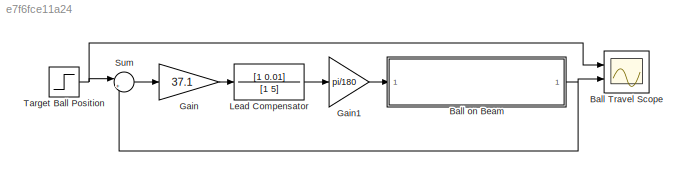
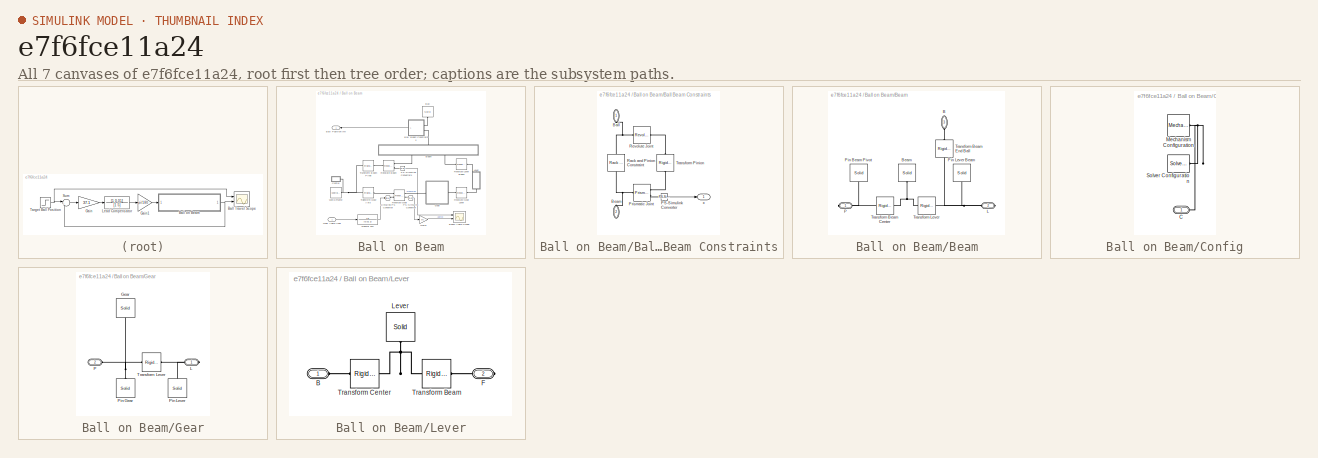
[diagram: thumbnail index - all 7 canvases of the model, root first then tree order]
MODEL slx_e7f6fce11a24
KIND model
CONFIG AbsTol = auto
CONFIG EnableMultiTasking = on
CONFIG FixedStep = auto
CONFIG MaxStep = auto
CONFIG MinStep = auto
CONFIG PostLoadFcn = m = 0.11;\nR = 0.015;\ng = -9.8;\nL = 1.0;\nd = 0.03;\nJ = 9.99e-6;
CONFIG RelTol = 1e-3
CONFIG SampleTimeConstraint = Unconstrained
CONFIG Solver = ode23t
CONFIG SolverName = ode23t
CONFIG StartTime = 0.0
CONFIG StopTime = 1000
BLOCK [Scope] Ball Travel Scope
  Floating = off
  NumInputPorts = 2
  Ports = [2]
  ScopeSpecificationString = Simulink.scopes.TimeScopeBlockCfg('CurrentConfiguration', extmgr.ConfigurationSet(extmgr.Configuration('Core','General UI',true),extmgr.Configuration('Core','Source UI',true),extmgr.Configuration('Sources','WiredSimulink',true,'DataLoggingSaveFormat','StructureWithTime','DataLoggingDecimation','1','DataLoggingDecimateData',true),extmgr.Configuration('Visuals','Time Domain',true,'SerializedDisplays...<+1706ch>
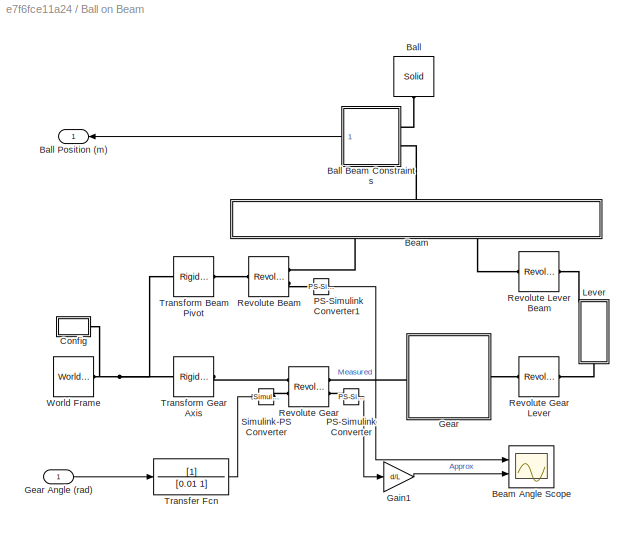
BLOCK [SubSystem] Ball on Beam
  Ports = [1, 1]
  RequestExecContextInheritance = off
BLOCK [Reference] Ball on Beam/Ball  REF=sm_lib/Body Elements/Solid
  Ports = [0, 0, 0, 0, 0, 0, 1]
  SourceBlock = sm_lib/Body Elements/Solid
  SourceProductBaseCode = MS
  SourceProductName = Simscape Multibody
  SourceType = Solid
BLOCK [SubSystem] Ball on Beam/Ball Beam Constraints
  Ports = [0, 1, 0, 0, 0, 2]
  RequestExecContextInheritance = off
BLOCK [PMIOPort] Ball on Beam/Ball Beam Constraints/Ball
  Side = Left
BLOCK [PMIOPort] Ball on Beam/Ball Beam Constraints/Beam
  Port = 2
  Side = Left
BLOCK [Reference] Ball on Beam/Ball Beam Constraints/PS-Simulink Converter  REF=nesl_utility/PS-Simulink
Converter
  Ports = [0, 1, 0, 0, 0, 1]
  SourceBlock = nesl_utility/PS-Simulink\nConverter
  SourceProductBaseCode = SS
  SourceProductName = Simscape
  SourceType = PS-Simulink\nConverter
BLOCK [Reference] Ball on Beam/Ball Beam Constraints/Prismatic Joint  REF=sm_lib/Joints/Prismatic
Joint
  Ports = [0, 0, 0, 0, 0, 1, 2]
  SourceBlock = sm_lib/Joints/Prismatic\nJoint
  SourceProductBaseCode = MS
  SourceProductName = Simscape Multibody
  SourceType = Prismatic\nJoint
BLOCK [Reference] Ball on Beam/Ball Beam Constraints/Rack and Pinion Constraint  REF=sm_lib/Gears and
Couplings/Gears/Rack and Pinion
Constraint
  Ports = [0, 0, 0, 0, 0, 1, 1]
  SourceBlock = sm_lib/Gears and\nCouplings/Gears/Rack and Pinion\nConstraint
  SourceProductBaseCode = MS
  SourceProductName = Simscape Multibody
  SourceType = Rack and Pinion\nConstraint
BLOCK [Reference] Ball on Beam/Ball Beam Constraints/Revolute Joint  REF=sm_lib/Joints/Revolute Joint
  Ports = [0, 0, 0, 0, 0, 1, 1]
  SourceBlock = sm_lib/Joints/Revolute Joint
  SourceProductBaseCode = MS
  SourceProductName = Simscape Multibody
  SourceType = Revolute Joint
BLOCK [Reference] Ball on Beam/Ball Beam Constraints/Transform Pinion  REF=sm_lib/Frames and
Transforms/Rigid
Transform
  Ports = [0, 0, 0, 0, 0, 1, 1]
  SourceBlock = sm_lib/Frames and\nTransforms/Rigid\nTransform
  SourceProductBaseCode = MS
  SourceProductName = Simscape Multibody
  SourceType = Rigid\nTransform
BLOCK [Outport] Ball on Beam/Ball Beam Constraints/x
  IconDisplay = Port number
BLOCK [Outport] Ball on Beam/Ball Position (m)
  IconDisplay = Port number
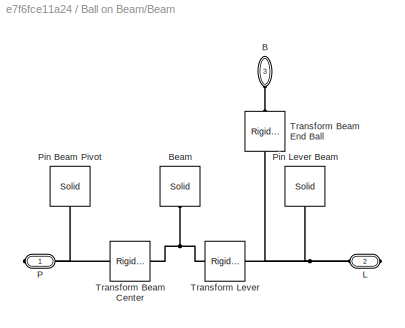
BLOCK [SubSystem] Ball on Beam/Beam
  Ports = [0, 0, 0, 0, 0, 1, 2]
  RequestExecContextInheritance = off
BLOCK [Scope] Ball on Beam/Beam Angle Scope
  Floating = off
  NumInputPorts = 2
  Ports = [2]
  ScopeSpecificationString = Simulink.scopes.TimeScopeBlockCfg('CurrentConfiguration', extmgr.ConfigurationSet(extmgr.Configuration('Core','General UI',true),extmgr.Configuration('Core','Source UI',true),extmgr.Configuration('Sources','WiredSimulink',true,'DataLoggingSaveFormat','StructureWithTime','DataLoggingDecimation','1','DataLoggingDecimateData',true,'DataLoggingVariableName','ScopeData1'),extmgr.Configuration('Visuals'...<+1725ch>
BLOCK [PMIOPort] Ball on Beam/Beam/B
  Port = 3
  Side = Left
BLOCK [Reference] Ball on Beam/Beam/Beam  REF=sm_lib/Body Elements/Solid
  Ports = [0, 0, 0, 0, 0, 0, 1]
  SourceBlock = sm_lib/Body Elements/Solid
  SourceProductBaseCode = MS
  SourceProductName = Simscape Multibody
  SourceType = Solid
BLOCK [PMIOPort] Ball on Beam/Beam/L
  Port = 2
  Side = Right
BLOCK [PMIOPort] Ball on Beam/Beam/P
  Side = Right
BLOCK [Reference] Ball on Beam/Beam/Pin Beam Pivot  REF=sm_lib/Body Elements/Solid
  Ports = [0, 0, 0, 0, 0, 0, 1]
  SourceBlock = sm_lib/Body Elements/Solid
  SourceProductBaseCode = MS
  SourceProductName = Simscape Multibody
  SourceType = Solid
BLOCK [Reference] Ball on Beam/Beam/Pin Lever Beam  REF=sm_lib/Body Elements/Solid
  Ports = [0, 0, 0, 0, 0, 0, 1]
  SourceBlock = sm_lib/Body Elements/Solid
  SourceProductBaseCode = MS
  SourceProductName = Simscape Multibody
  SourceType = Solid
BLOCK [Reference] Ball on Beam/Beam/Transform Beam Center  REF=sm_lib/Frames and
Transforms/Rigid
Transform
  Ports = [0, 0, 0, 0, 0, 1, 1]
  SourceBlock = sm_lib/Frames and\nTransforms/Rigid\nTransform
  SourceProductBaseCode = MS
  SourceProductName = Simscape Multibody
  SourceType = Rigid\nTransform
BLOCK [Reference] Ball on Beam/Beam/Transform Beam End Ball  REF=sm_lib/Frames and
Transforms/Rigid
Transform
  Ports = [0, 0, 0, 0, 0, 1, 1]
  SourceBlock = sm_lib/Frames and\nTransforms/Rigid\nTransform
  SourceProductBaseCode = MS
  SourceProductName = Simscape Multibody
  SourceType = Rigid\nTransform
BLOCK [Reference] Ball on Beam/Beam/Transform Lever  REF=sm_lib/Frames and
Transforms/Rigid
Transform
  Ports = [0, 0, 0, 0, 0, 1, 1]
  SourceBlock = sm_lib/Frames and\nTransforms/Rigid\nTransform
  SourceProductBaseCode = MS
  SourceProductName = Simscape Multibody
  SourceType = Rigid\nTransform
BLOCK [SubSystem] Ball on Beam/Config
  Ports = [0, 0, 0, 0, 0, 1]
  RequestExecContextInheritance = off
BLOCK [PMIOPort] Ball on Beam/Config/C
  Side = Left
BLOCK [Reference] Ball on Beam/Config/Mechanism Configuration  REF=sm_lib/Utilities/Mechanism
Configuration
  Ports = [0, 0, 0, 0, 0, 0, 1]
  SourceBlock = sm_lib/Utilities/Mechanism\nConfiguration
  SourceProductBaseCode = MS
  SourceProductName = Simscape Multibody
  SourceType = Mechanism\nConfiguration
BLOCK [Reference] Ball on Beam/Config/Solver Configuration  REF=nesl_utility/Solver
Configuration
  Ports = [0, 0, 0, 0, 0, 0, 1]
  SourceBlock = nesl_utility/Solver\nConfiguration
  SourceProductBaseCode = SS
  SourceProductName = Simscape
  SourceType = Solver\nConfiguration
BLOCK [Gain] Ball on Beam/Gain1
  Gain = d/L
  OutDataTypeStr = Inherit: Inherit via internal rule
  ParamDataTypeStr = Inherit: Inherit via internal rule
  SaturateOnIntegerOverflow = off
BLOCK [SubSystem] Ball on Beam/Gear
  Ports = [0, 0, 0, 0, 0, 1, 1]
  RequestExecContextInheritance = off
BLOCK [Inport] Ball on Beam/Gear Angle (rad)
  IconDisplay = Port number
BLOCK [Reference] Ball on Beam/Gear/Gear  REF=sm_lib/Body Elements/Solid
  Ports = [0, 0, 0, 0, 0, 0, 1]
  SourceBlock = sm_lib/Body Elements/Solid
  SourceProductBaseCode = MS
  SourceProductName = Simscape Multibody
  SourceType = Solid
BLOCK [PMIOPort] Ball on Beam/Gear/L
  Side = Right
BLOCK [PMIOPort] Ball on Beam/Gear/P
  Port = 2
  Side = Left
BLOCK [Reference] Ball on Beam/Gear/Pin Gear  REF=sm_lib/Body Elements/Solid
  Ports = [0, 0, 0, 0, 0, 0, 1]
  SourceBlock = sm_lib/Body Elements/Solid
  SourceProductBaseCode = MS
  SourceProductName = Simscape Multibody
  SourceType = Solid
BLOCK [Reference] Ball on Beam/Gear/Pin Lever  REF=sm_lib/Body Elements/Solid
  Ports = [0, 0, 0, 0, 0, 0, 1]
  SourceBlock = sm_lib/Body Elements/Solid
  SourceProductBaseCode = MS
  SourceProductName = Simscape Multibody
  SourceType = Solid
BLOCK [Reference] Ball on Beam/Gear/Transform Lever  REF=sm_lib/Frames and
Transforms/Rigid
Transform
  Ports = [0, 0, 0, 0, 0, 1, 1]
  SourceBlock = sm_lib/Frames and\nTransforms/Rigid\nTransform
  SourceProductBaseCode = MS
  SourceProductName = Simscape Multibody
  SourceType = Rigid\nTransform
BLOCK [SubSystem] Ball on Beam/Lever
  Ports = [0, 0, 0, 0, 0, 1, 1]
  RequestExecContextInheritance = off
BLOCK [PMIOPort] Ball on Beam/Lever/B
  Side = Left
BLOCK [PMIOPort] Ball on Beam/Lever/F
  Port = 2
  Side = Right
BLOCK [Reference] Ball on Beam/Lever/Lever  REF=sm_lib/Body Elements/Solid
  Ports = [0, 0, 0, 0, 0, 0, 1]
  SourceBlock = sm_lib/Body Elements/Solid
  SourceProductBaseCode = MS
  SourceProductName = Simscape Multibody
  SourceType = Solid
BLOCK [Reference] Ball on Beam/Lever/Transform Beam  REF=sm_lib/Frames and
Transforms/Rigid
Transform
  Ports = [0, 0, 0, 0, 0, 1, 1]
  SourceBlock = sm_lib/Frames and\nTransforms/Rigid\nTransform
  SourceProductBaseCode = MS
  SourceProductName = Simscape Multibody
  SourceType = Rigid\nTransform
BLOCK [Reference] Ball on Beam/Lever/Transform Center  REF=sm_lib/Frames and
Transforms/Rigid
Transform
  Ports = [0, 0, 0, 0, 0, 1, 1]
  SourceBlock = sm_lib/Frames and\nTransforms/Rigid\nTransform
  SourceProductBaseCode = MS
  SourceProductName = Simscape Multibody
  SourceType = Rigid\nTransform
BLOCK [Reference] Ball on Beam/PS-Simulink Converter  REF=nesl_utility/PS-Simulink
Converter
  Ports = [0, 1, 0, 0, 0, 1]
  SourceBlock = nesl_utility/PS-Simulink\nConverter
  SourceProductBaseCode = SS
  SourceProductName = Simscape
  SourceType = PS-Simulink\nConverter
BLOCK [Reference] Ball on Beam/PS-Simulink Converter1  REF=nesl_utility/PS-Simulink
Converter
  Ports = [0, 1, 0, 0, 0, 1]
  SourceBlock = nesl_utility/PS-Simulink\nConverter
  SourceProductBaseCode = SS
  SourceProductName = Simscape
  SourceType = PS-Simulink\nConverter
BLOCK [Reference] Ball on Beam/Revolute Beam  REF=sm_lib/Joints/Revolute Joint
  Ports = [0, 0, 0, 0, 0, 1, 2]
  SourceBlock = sm_lib/Joints/Revolute Joint
  SourceProductBaseCode = MS
  SourceProductName = Simscape Multibody
  SourceType = Revolute Joint
BLOCK [Reference] Ball on Beam/Revolute Gear  REF=sm_lib/Joints/Revolute Joint
  Ports = [0, 0, 0, 0, 0, 2, 2]
  SourceBlock = sm_lib/Joints/Revolute Joint
  SourceProductBaseCode = MS
  SourceProductName = Simscape Multibody
  SourceType = Revolute Joint
BLOCK [Reference] Ball on Beam/Revolute Gear Lever  REF=sm_lib/Joints/Revolute Joint
  Ports = [0, 0, 0, 0, 0, 1, 1]
  SourceBlock = sm_lib/Joints/Revolute Joint
  SourceProductBaseCode = MS
  SourceProductName = Simscape Multibody
  SourceType = Revolute Joint
BLOCK [Reference] Ball on Beam/Revolute Lever Beam  REF=sm_lib/Joints/Revolute Joint
  Ports = [0, 0, 0, 0, 0, 1, 1]
  SourceBlock = sm_lib/Joints/Revolute Joint
  SourceProductBaseCode = MS
  SourceProductName = Simscape Multibody
  SourceType = Revolute Joint
BLOCK [Reference] Ball on Beam/Simulink-PS Converter  REF=nesl_utility/Simulink-PS
Converter
  Ports = [1, 0, 0, 0, 0, 0, 1]
  SourceBlock = nesl_utility/Simulink-PS\nConverter
  SourceProductBaseCode = SS
  SourceProductName = Simscape
  SourceType = Simulink-PS\nConverter
BLOCK [TransferFcn] Ball on Beam/Transfer Fcn
  Denominator = [0.01 1]
BLOCK [Reference] Ball on Beam/Transform Beam Pivot  REF=sm_lib/Frames and
Transforms/Rigid
Transform
  Ports = [0, 0, 0, 0, 0, 1, 1]
  SourceBlock = sm_lib/Frames and\nTransforms/Rigid\nTransform
  SourceProductBaseCode = MS
  SourceProductName = Simscape Multibody
  SourceType = Rigid\nTransform
BLOCK [Reference] Ball on Beam/Transform Gear Axis  REF=sm_lib/Frames and
Transforms/Rigid
Transform
  Ports = [0, 0, 0, 0, 0, 1, 1]
  SourceBlock = sm_lib/Frames and\nTransforms/Rigid\nTransform
  SourceProductBaseCode = MS
  SourceProductName = Simscape Multibody
  SourceType = Rigid\nTransform
BLOCK [Reference] Ball on Beam/World Frame  REF=sm_lib/Frames and
Transforms/World Frame
  Ports = [0, 0, 0, 0, 0, 0, 1]
  SourceBlock = sm_lib/Frames and\nTransforms/World Frame
  SourceProductBaseCode = MS
  SourceProductName = Simscape Multibody
  SourceType = World Frame
BLOCK [Gain] Gain
  Gain = 37.1
  OutDataTypeStr = Inherit: Inherit via internal rule
  ParamDataTypeStr = Inherit: Inherit via internal rule
  SaturateOnIntegerOverflow = off
BLOCK [Gain] Gain1
  Gain = pi/180
  OutDataTypeStr = Inherit: Inherit via internal rule
  ParamDataTypeStr = Inherit: Inherit via internal rule
  SaturateOnIntegerOverflow = off
BLOCK [TransferFcn] Lead Compensator
  Denominator = [1 5]
  Numerator = [1 0.01]
BLOCK [Sum] Sum
  IconShape = round
  InputSameDT = off
  Inputs = |+-
  OutDataTypeStr = Inherit: Inherit via internal rule
  Ports = [2, 1]
  SaturateOnIntegerOverflow = off
BLOCK [Step] Target Ball Position
  After = 0.3
  SampleTime = 0
  Time = 0
LINE Ball on Beam/Ball Beam Constraints/PS-Simulink Converter:1 -> Ball on Beam/Ball Beam Constraints/x:1
LINE Ball on Beam/Ball Beam Constraints:1 -> Ball on Beam/Ball Position (m):1
LINE Ball on Beam/Gain1:1 -> Ball on Beam/Beam Angle Scope:2
LINE Ball on Beam/Gear Angle (rad):1 -> Ball on Beam/Transfer Fcn:1
LINE Ball on Beam/PS-Simulink Converter1:1 -> Ball on Beam/Beam Angle Scope:1
LINE Ball on Beam/PS-Simulink Converter:1 -> Ball on Beam/Gain1:1
LINE Ball on Beam/Transfer Fcn:1 -> Ball on Beam/Simulink-PS Converter:1
NET Ball on Beam:1 -> Ball Travel Scope:2, Sum:2
LINE Gain1:1 -> Ball on Beam:1
LINE Gain:1 -> Lead Compensator:1
LINE Lead Compensator:1 -> Gain1:1
LINE Sum:1 -> Gain:1
NET Target Ball Position:1 -> Ball Travel Scope:1, Sum:1
PNET net1: Ball on Beam/Ball Beam Constraints/Ball:RConn1 -- Ball on Beam/Ball Beam Constraints/Rack and Pinion Constraint:LConn1 -- Ball on Beam/Ball Beam Constraints/Revolute Joint:RConn1
PNET net2: Ball on Beam/Ball Beam Constraints/Beam:RConn1 -- Ball on Beam/Ball Beam Constraints/Prismatic Joint:LConn1 -- Ball on Beam/Ball Beam Constraints/Rack and Pinion Constraint:RConn1
PLINE Ball on Beam/Ball Beam Constraints/PS-Simulink Converter:LConn1 -- Ball on Beam/Ball Beam Constraints/Prismatic Joint:RConn2
PLINE Ball on Beam/Ball Beam Constraints/Prismatic Joint:RConn1 -- Ball on Beam/Ball Beam Constraints/Transform Pinion:LConn1
PLINE Ball on Beam/Ball Beam Constraints/Revolute Joint:LConn1 -- Ball on Beam/Ball Beam Constraints/Transform Pinion:RConn1
PLINE Ball on Beam/Ball Beam Constraints:LConn1 -- Ball on Beam/Ball:RConn1
PLINE Ball on Beam/Ball Beam Constraints:LConn2 -- Ball on Beam/Beam:LConn1
PLINE Ball on Beam/Beam/B:RConn1 -- Ball on Beam/Beam/Transform Beam End Ball:RConn1
PNET net3: Ball on Beam/Beam/Beam:RConn1 -- Ball on Beam/Beam/Transform Beam Center:LConn1 -- Ball on Beam/Beam/Transform Lever:RConn1
PNET net4: Ball on Beam/Beam/L:RConn1 -- Ball on Beam/Beam/Pin Lever Beam:RConn1 -- Ball on Beam/Beam/Transform Beam End Ball:LConn1 -- Ball on Beam/Beam/Transform Lever:LConn1
PNET net5: Ball on Beam/Beam/P:RConn1 -- Ball on Beam/Beam/Pin Beam Pivot:RConn1 -- Ball on Beam/Beam/Transform Beam Center:RConn1
PLINE Ball on Beam/Beam:RConn1 -- Ball on Beam/Revolute Beam:RConn1
PLINE Ball on Beam/Beam:RConn2 -- Ball on Beam/Revolute Lever Beam:RConn1
PNET net6: Ball on Beam/Config/C:RConn1 -- Ball on Beam/Config/Mechanism Configuration:RConn1 -- Ball on Beam/Config/Solver Configuration:RConn1
PNET net7: Ball on Beam/Config:LConn1 -- Ball on Beam/Transform Beam Pivot:LConn1 -- Ball on Beam/Transform Gear Axis:LConn1 -- Ball on Beam/World Frame:RConn1
PNET net8: Ball on Beam/Gear/Gear:RConn1 -- Ball on Beam/Gear/P:RConn1 -- Ball on Beam/Gear/Pin Gear:RConn1 -- Ball on Beam/Gear/Transform Lever:LConn1
PNET net9: Ball on Beam/Gear/L:RConn1 -- Ball on Beam/Gear/Pin Lever:RConn1 -- Ball on Beam/Gear/Transform Lever:RConn1
PLINE Ball on Beam/Gear:LConn1 -- Ball on Beam/Revolute Gear:RConn1
PLINE Ball on Beam/Gear:RConn1 -- Ball on Beam/Revolute Gear Lever:LConn1
PLINE Ball on Beam/Lever/B:RConn1 -- Ball on Beam/Lever/Transform Center:LConn1
PLINE Ball on Beam/Lever/F:RConn1 -- Ball on Beam/Lever/Transform Beam:RConn1
PNET net10: Ball on Beam/Lever/Lever:RConn1 -- Ball on Beam/Lever/Transform Beam:LConn1 -- Ball on Beam/Lever/Transform Center:RConn1
PLINE Ball on Beam/Lever:LConn1 -- Ball on Beam/Revolute Gear Lever:RConn1
PLINE Ball on Beam/Lever:RConn1 -- Ball on Beam/Revolute Lever Beam:LConn1
PLINE Ball on Beam/PS-Simulink Converter1:LConn1 -- Ball on Beam/Revolute Beam:RConn2
PLINE Ball on Beam/PS-Simulink Converter:LConn1 -- Ball on Beam/Revolute Gear:RConn2
PLINE Ball on Beam/Revolute Beam:LConn1 -- Ball on Beam/Transform Beam Pivot:RConn1
PLINE Ball on Beam/Revolute Gear:LConn1 -- Ball on Beam/Transform Gear Axis:RConn1
PLINE Ball on Beam/Revolute Gear:LConn2 -- Ball on Beam/Simulink-PS Converter:RConn1
note: NET lines group one-source signal fan-out (src -> all destinations, sorted); 1:1 wires keep LINE; PNET lines group multi-terminal physical nets as a canonical sorted terminal list (undirected conserving connections); 2-terminal nets keep the pairwise PLINE form
